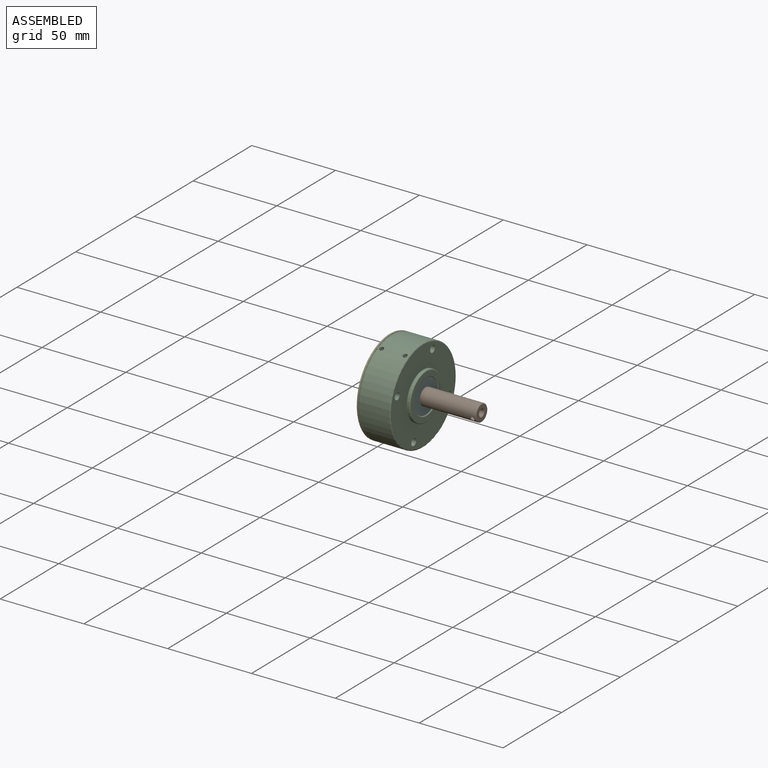
[diagram: assembled view]
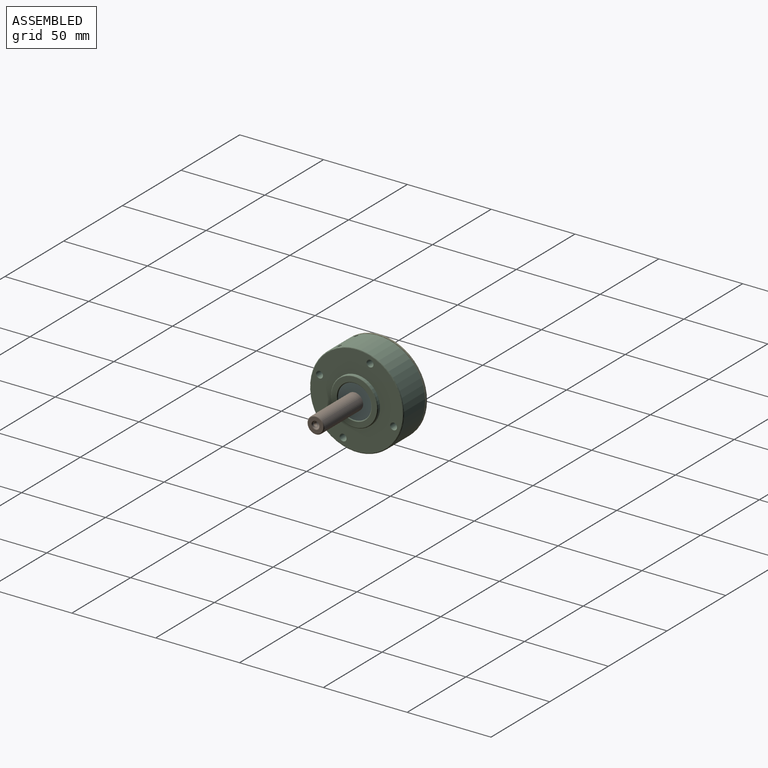
[diagram: assembled view, second angle]
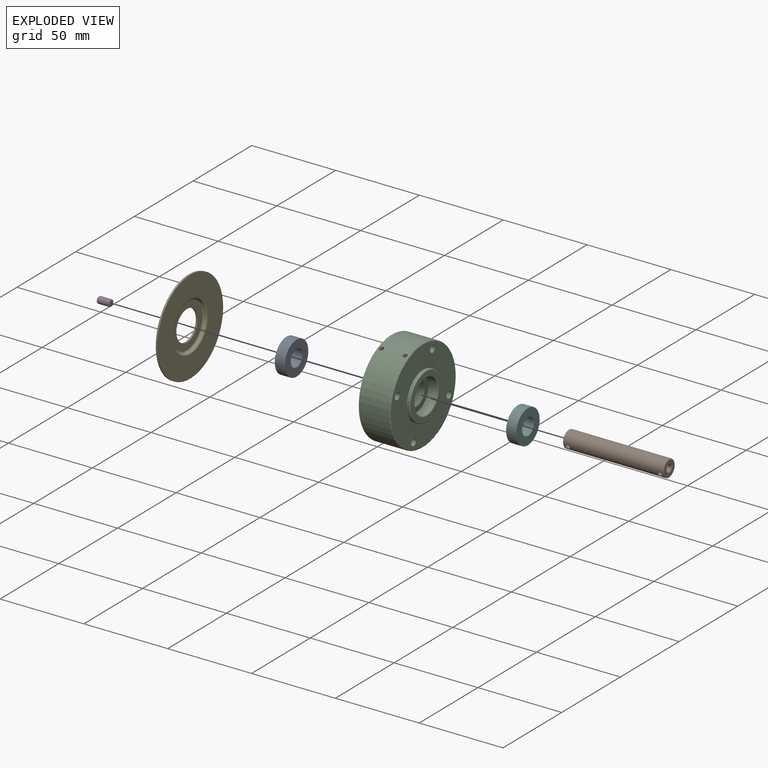
[diagram: exploded view]
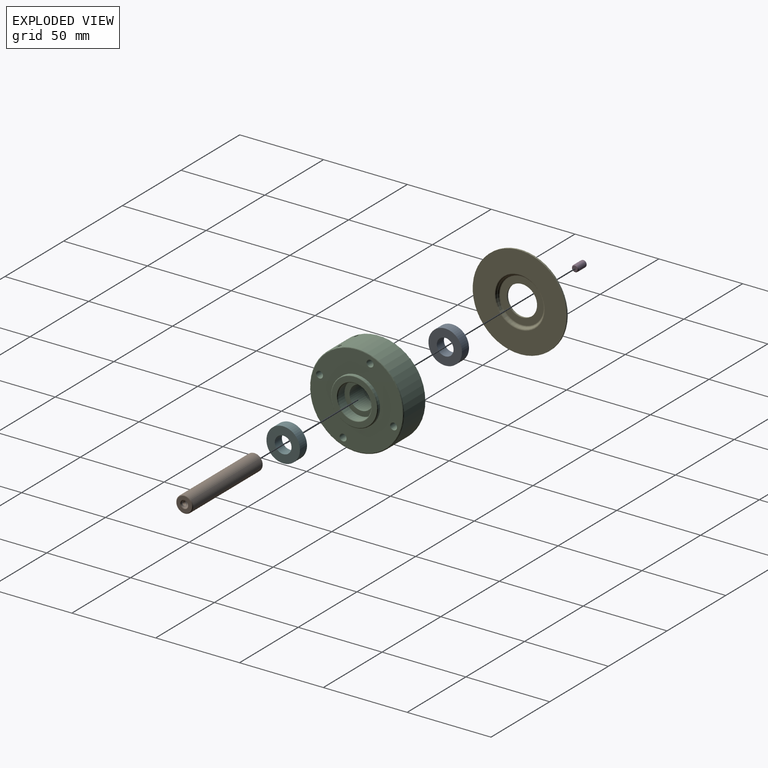
[diagram: exploded view, second angle]
ASSEMBLY  parts=6 mates=5
PART A: 4 faces, bbox 6x20x20 mm
  f0: cylinder r=5mm len=10mm, axis (1,0,0), area 189.7mm2, adj f1,f3
  f1: cone r=10mm half-angle=89.7deg, axis (-1,0,0), area 235.6mm2, adj f0,f2
  f2: cylinder r=10mm len=20mm, axis (1,0,0), area 377.5mm2, adj f1,f3
  f3: plane 20x20mm, normal (-1,0,0), area 235.6mm2, adj f0,f2
PART B: 10 faces, bbox 60x10.8x10.8 mm
  f0: cylinder r=5mm len=59mm, axis (1,0,0), area 1843.6mm2, adj f6,f7,f8,f9
  f1: cylinder r=2mm len=59mm, axis (-1,0,0), area 731mm2, adj f4,f5,f8,f9
  f2: plane 9x9mm, normal (1,0,0), area 44mm2, adj f4,f6
  f3: plane 9x9mm, normal (-1,0,0), area 44mm2, adj f5,f7
  f4: torus R=2.5mm, axis (-1,0,0), area 10.8mm2, adj f1,f2
  f5: torus R=2.5mm, axis (-1,0,0), area 10.8mm2, adj f1,f3
  f6: torus R=4.5mm, axis (-1,0,0), area 23.8mm2, adj f0,f2
  f7: torus R=4.5mm, axis (-1,0,0), area 23.8mm2, adj f0,f3
  f8: cylinder r=1.25mm len=3.44mm, axis (0,0,1), area 24.6mm2, adj f0,f1
  f9: cylinder r=1.25mm len=3.44mm, axis (0,0,1), area 24.6mm2, adj f0,f1
PART C: 24 faces, bbox 23x60.6x60.6 mm
  f0: cylinder r=10mm len=20mm, axis (-1,0,0), area 340.7mm2, adj f3,f12,f23
  f1: cylinder r=28mm len=56mm, axis (-1,0,0), area 3157mm2, adj f14,f15,f22,f23
  f2: cylinder r=10mm len=20mm, axis (-1,0,0), area 340.7mm2, adj f10,f17,f22
  f3: plane 20x20mm, normal (1,0,0), area 160.2mm2, adj f0,f11
  f4: plane 27x27mm, normal (1,0,0), area 226.2mm2, adj f12,f13
  f5: cylinder r=14mm len=28mm, axis (-1,0,0), area 131.9mm2, adj f6,f13
  f6: plane 55x55mm, normal (1,0,0), area 1707.3mm2, adj f5,f14,f18,f19,f20,f21
  f7: plane 55x55mm, normal (-1,0,0), area 1707.3mm2, adj f8,f15,f18,f19,f20,f21
  f8: cone r=14mm half-angle=0deg, axis (1,0,0), area 131.9mm2, adj f7,f16
  f9: plane 27x27mm, normal (-1,0,0), area 226.2mm2, adj f16,f17
  f10: plane 20x20mm, normal (-1,0,0), area 160.2mm2, adj f2,f11
  f11: cylinder r=7mm len=14mm, axis (-1,0,0), area 483.9mm2, adj f3,f10
  f12: torus R=10.5mm, axis (-1,0,0), area 50.2mm2, adj f0,f4
  f13: torus R=13.5mm, axis (-1,0,0), area 68.2mm2, adj f4,f5
  f14: torus R=27.5mm, axis (-1,0,0), area 137.3mm2, adj f1,f6
  f15: torus R=27.5mm, axis (1,0,0), area 137.3mm2, adj f1,f7
  f16: torus R=13.5mm, axis (1,0,0), area 68.2mm2, adj f8,f9
  f17: torus R=10.5mm, axis (1,0,0), area 50.2mm2, adj f2,f9
  f18: cylinder r=2.05mm len=19mm, axis (1,0,0), area 244.7mm2, adj f6,f7
  f19: cylinder r=2.05mm len=19mm, axis (1,0,0), area 244.7mm2, adj f6,f7
  f20: cylinder r=2.05mm len=19mm, axis (1,0,0), area 244.7mm2, adj f6,f7
  f21: cylinder r=2.05mm len=19mm, axis (1,0,0), area 244.7mm2, adj f6,f7
  f22: cylinder r=1.25mm len=18.08mm, axis (0,-1,0), area 141.6mm2, adj f1,f2
  f23: cylinder r=1.25mm len=18.08mm, axis (0,-1,0), area 141.6mm2, adj f0,f1
PART D: 5 faces, bbox 4.3x4.3x7.5 mm
  f0: cylinder r=2mm len=6.5mm, axis (0,0,-1), area 81.7mm2, adj f3,f4
  f1: plane 3x3mm, normal (0,0,1), area 7.1mm2, adj f4
  f2: plane 3x3mm, normal (0,0,-1), area 7.1mm2, adj f3
  f3: torus R=1.5mm, axis (0,0,1), area 9mm2, adj f0,f2
  f4: torus R=1.5mm, axis (0,0,1), area 9mm2, adj f0,f1
PART E: 10 faces, bbox 3x56x56 mm
  f0: plane 28x28mm, normal (-1,0,0), area 361.3mm2, adj f1,f7
  f1: cylinder r=9mm len=18mm, axis (-1,0,0), area 56.5mm2, adj f0,f2
  f2: plane 26x26mm, normal (1,0,0), area 276.5mm2, adj f1,f9
  f3: plane 56x56mm, normal (1,0,0), area 1756.2mm2, adj f4,f8
  f4: cylinder r=28mm len=56mm, axis (-1,0,0), area 175.9mm2, adj f3,f5
  f5: plane 56x56mm, normal (-1,0,0), area 1658.8mm2, adj f4,f6
  f6: torus R=16mm, axis (-1,0,0), area 151.6mm2, adj f5,f7
  f7: torus R=14mm, axis (1,0,0), area 144.5mm2, adj f0,f6
  f8: torus R=15mm, axis (1,0,0), area 141.8mm2, adj f3,f9
  f9: torus R=13mm, axis (-1,0,0), area 134.6mm2, adj f2,f8
PART F: same geometry as A
PLACE A rot(axis=(0,0.54,0.84),180deg) t=(106.28,7.49,0.89)mm
PLACE B rot(axis=(0,0.54,0.84),180deg) t=(115.23,9.34,-3.08)mm fixed
PLACE C rot(axis=(1,0,0),115deg) t=(99.78,9.34,-3.08)mm
PLACE D rot(axis=(0.64,0.41,0.64),135.3deg) t=(92,9.34,-3.08)mm
PLACE E rot(axis=(1,0,0),115deg) t=(93.78,9.34,-3.08)mm
PLACE F rot(axis=(1,0,0),115deg) t=(116.27,7.49,0.89)mm
MATE fastened E.f1 <-> C.f0  axis (1,0,0) through (101.78,9.34,-3.08)mm
MATE revolute D.f0 <-> B.f1  axis (-1,0,0) through (95.75,9.34,-3.08)mm
MATE fastened A.f0 <-> C.f0  axis (-1,0,0) through (100.28,9.34,-3.08)mm
MATE revolute B.f0 <-> A.f0  axis (-1,0,0) through (155.25,9.34,-3.08)mm
MATE fastened F.f0 <-> C.f0  axis (1,0,0) through (122.28,9.34,-3.08)mm
